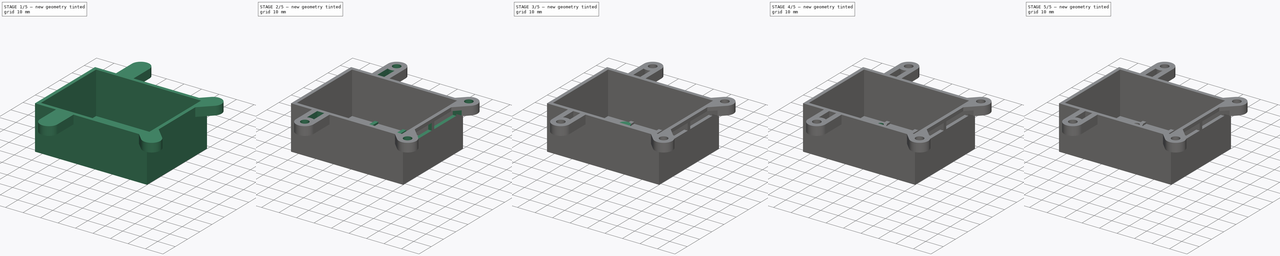
[diagram: build sequence overview — one tinted view per stage of 5, left to right]
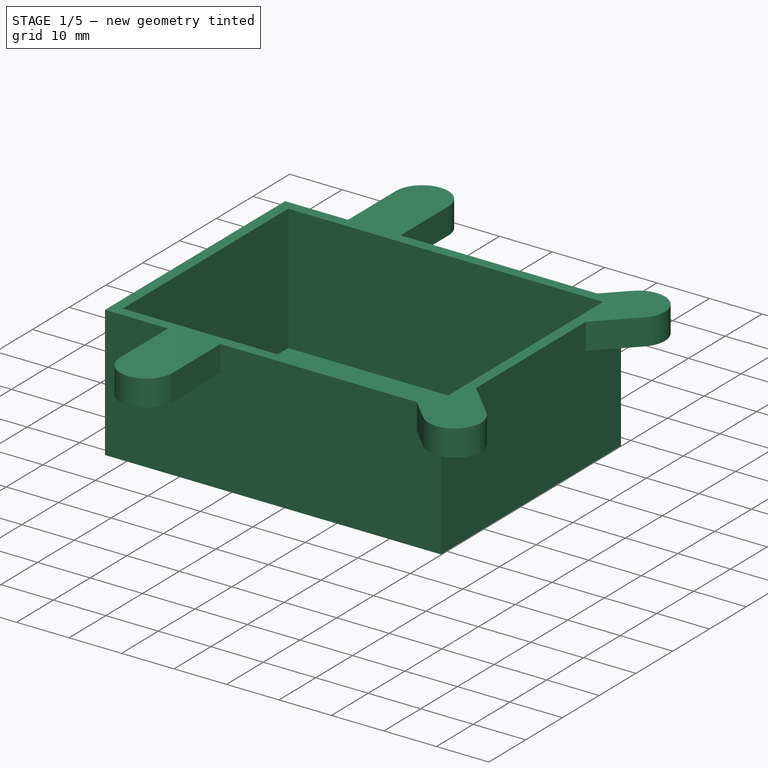
[diagram: stage 1 of 5 — iso view after this stage's code; geometry added in this stage tinted green]
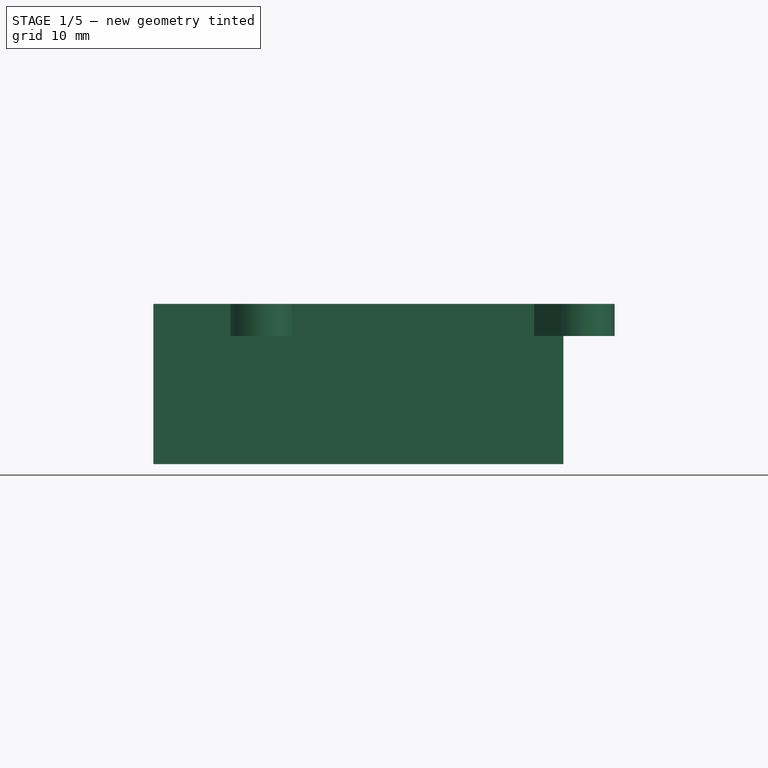
[diagram: stage 1 of 5 — front view after this stage's code; geometry added in this stage tinted green]
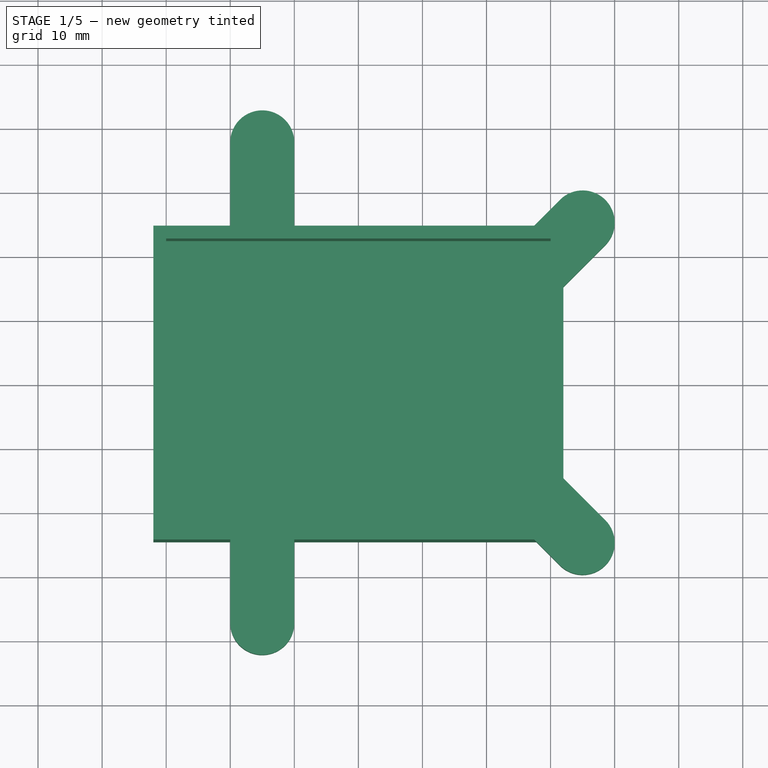
[diagram: stage 1 of 5 — top view after this stage's code; geometry added in this stage tinted green]
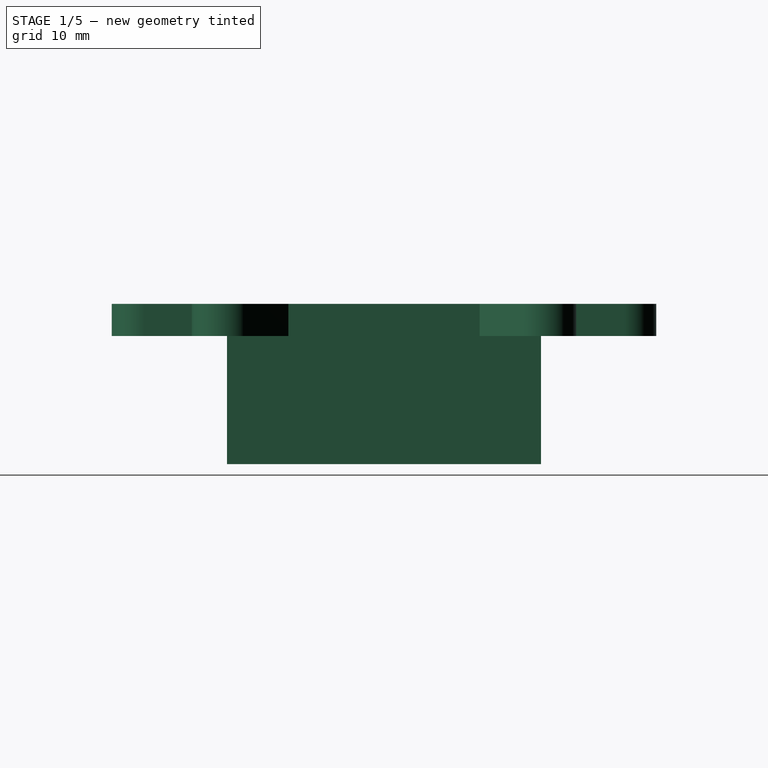
[diagram: stage 1 of 5 — right view after this stage's code; geometry added in this stage tinted green]
FCSTD DOCUMENT  (FreeCAD 1.0R38641 +678 (Git))
Label: box
License: All rights reserved
LicenseURL: https://en.wikipedia.org/wiki/All_rights_reserved
objects: Sketcher::SketchObject×17, PartDesign::Pad×9, PartDesign::Pocket×8, PartDesign::Body×1
note: 86 computed .brp shape members not serialized (recipe doc carries the construction recipe); baked Part::Feature solids carry a one-line shape summary decoded from their .brp

FEATURE [Sketcher::SketchObject] Sketch315
  ArcFitTolerance = 0
  AttachmentSupport = -> [XY_Plane034]
  FullyConstrained = true
  MakeInternals = false
  MapMode = 5
  sketch-geometry (32):
    g0: LineSegment StartX=-30 StartY=22.5 StartZ=0 EndX=30 EndY=22.5 EndZ=0
    g1: LineSegment StartX=-30 StartY=22.5 StartZ=0 EndX=-30 EndY=-22.5 EndZ=0
    g2: LineSegment StartX=-30 StartY=-22.5 StartZ=0 EndX=30 EndY=-22.5 EndZ=0
    g3: LineSegment StartX=30 StartY=22.5 StartZ=0 EndX=30 EndY=-22.5 EndZ=0
    g4: LineSegment StartX=-32 StartY=24.5 StartZ=0 EndX=-20 EndY=24.5 EndZ=0
    g5: LineSegment StartX=27.4289 StartY=-24.5 StartZ=0 EndX=-10 EndY=-24.5 EndZ=0
    g6: LineSegment StartX=-32 StartY=-24.5 StartZ=0 EndX=-32 EndY=24.5 EndZ=0
    g7: GeomPoint [constr] X=35 Y=25 Z=0
    g8: GeomPoint [constr] X=35 Y=-25 Z=0
    g9: GeomPoint [constr] X=-15 Y=-25 Z=0
    g10: GeomPoint [constr] X=-15 Y=25 Z=0
    g11: GeomPoint [constr] X=-15 Y=-37.5 Z=0
    g12: GeomPoint [constr] X=-15 Y=37.5 Z=0
    g13: ArcOfCircle CenterX=35 CenterY=-25 CenterZ=0 NormalX=0 NormalY=0 NormalZ=1 AngleXU=0 Radius=5 StartAngle=3.92699 EndAngle=7.06858
    g14: ArcOfCircle CenterX=35 CenterY=25 CenterZ=0 NormalX=0 NormalY=0 NormalZ=1 AngleXU=0 Radius=5 StartAngle=5.49779 EndAngle=8.63938
    g15: ArcOfCircle CenterX=-15 CenterY=37.5 CenterZ=0 NormalX=0 NormalY=0 NormalZ=1 AngleXU=0 Radius=5 StartAngle=0 EndAngle=3.14159
    g16: ArcOfCircle CenterX=-15 CenterY=-37.5 CenterZ=0 NormalX=0 NormalY=0 NormalZ=1 AngleXU=0 Radius=5 StartAngle=3.14159 EndAngle=6.28319
    g17: LineSegment StartX=27.4289 StartY=24.5 StartZ=0 EndX=31.4645 EndY=28.5355 EndZ=0
    g18: LineSegment StartX=32 StartY=14.9289 StartZ=0 EndX=38.5355 EndY=21.4645 EndZ=0
    g19: LineSegment StartX=-20 StartY=24.5 StartZ=0 EndX=-20 EndY=37.5 EndZ=0
    g20: LineSegment StartX=-10 StartY=24.5 StartZ=0 EndX=-10 EndY=37.5 EndZ=0
    g21: LineSegment StartX=-20 StartY=-24.5 StartZ=0 EndX=-20 EndY=-37.5 EndZ=0
    g22: LineSegment StartX=-10 StartY=-24.5 StartZ=0 EndX=-10 EndY=-37.5 EndZ=0
    g23: LineSegment StartX=27.4289 StartY=-24.5 StartZ=0 EndX=31.4645 EndY=-28.5355 EndZ=0
    g24: LineSegment StartX=32 StartY=-14.9289 StartZ=0 EndX=38.5355 EndY=-21.4645 EndZ=0
    g25: GeomPoint [constr] X=30 Y=20 Z=0
    g26: LineSegment [constr] StartX=30 StartY=20 StartZ=0 EndX=35 EndY=25 EndZ=0
    g27: GeomPoint [constr] X=30 Y=-20 Z=0
    g28: LineSegment [constr] StartX=30 StartY=-20 StartZ=0 EndX=35 EndY=-25 EndZ=0
    g29: LineSegment StartX=-20 StartY=-24.5 StartZ=0 EndX=-32 EndY=-24.5 EndZ=0
    g30: LineSegment StartX=-10 StartY=24.5 StartZ=0 EndX=27.4289 EndY=24.5 EndZ=0
    g31: LineSegment StartX=32 StartY=14.9289 StartZ=0 EndX=32 EndY=-14.9289 EndZ=0
  constraints (78):
    c: Horizontal(g0)
    c: DistanceX(g0,g0) = 60
    c: Coincident(g1,g0)
    c: Vertical(g1)
    c: DistanceY(g1,g1) = 45
    c: Distance(g-1,g0) = 22.5
    c: Distance(g-1,g1) = 30
    c: Coincident(g2,g1)
    c: Horizontal(g2)
    c: Coincident(g3,g0)
    c: Coincident(g3,g2)
    c: Vertical(g3)
    c: Horizontal(g4)
    c: Horizontal(g5)
    c: Coincident(g6,g29)
    c: Coincident(g6,g4)
    c: Vertical(g6)
    c: Distance(g0,g4) = 2
    c: DistanceY(g-1,g8) = -25
    c: DistanceY(g-1,g10) = 25
    c: DistanceY(g-1,g7) = 25
    c: DistanceY(g-1,g9) = -25
    c: Distance(g9,g8) = 50
    c: Distance(g10,g7) = 50
    c: DistanceX(g-2,g9) = -15
    c: DistanceX(g-2,g10) = -15
    c: Distance(g11,g9) = 12.5
    c: DistanceX(g-2,g11) = -15
    c: Distance(g12,g10) = 12.5
    c: DistanceX(g-2,g12) = -15
    c: Coincident(g13,g8)
    c: Coincident(g14,g7)
    c: Coincident(g15,g12)
    c: Coincident(g16,g11)
    c: Diameter(g14) = 10
    c: Equal(g14,g15)
    c: Equal(g15,g16)
    c: Equal(g16,g13)
    c: PointOnObject(g17,g4)
    c: Vertical(g19)
    c: Vertical(g20)
    c: Vertical(g21)
    c: Vertical(g22)
    c: PointOnObject(g25,g3)
    c: Distance(g25,g0) = 2.5
    c: Coincident(g26,g25)
    c: Coincident(g26,g14)
    c: Parallel(g26,g18)
    c: Parallel(g26,g17)
    c: PointOnObject(g27,g3)
    c: Distance(g27,g2) = 2.5
    c: Coincident(g28,g27)
    c: Coincident(g28,g13)
    c: Parallel(g28,g24)
    c: Parallel(g28,g23)
    c: Coincident(g5,g22)
    c: Coincident(g29,g21)
    c: Coincident(g4,g19)
    c: Coincident(g30,g20)
    c: Coincident(g31,g18)
    c: Tangent(g15,g19) = 1.5708
    c: Tangent(g15,g20) = -1.5708
    c: Tangent(g14,g18) = -1.5708
    c: Tangent(g14,g17) = 1.5708
    c: Tangent(g13,g24) = 1.5708
    c: Coincident(g5,g23)
    c: Tangent(g13,g23) = -1.5708
    c: Tangent(g16,g22) = 1.5708
    c: Tangent(g16,g21) = -1.5708
    c: Distance(g18,g3) = 2
    c: Distance(g5,g2) = 2
    c: Distance(g6,g2) = 2
    c: Distance(g6,g1) = 2
    c: Coincident(g31,g24)
    c: Vertical(g31)
    c: Horizontal(g29)
    c: Coincident(g30,g17)
    c: Horizontal(g30)
FEATURE [PartDesign::Pad] Pad148
  Direction = (0,0,1)
  Length = 5
  Length2 = 10
  Profile = -> Sketch315
  ReferenceAxis = -> Sketch315 [N_Axis]
  Suppressed = false
  Type = 0
FEATURE [Sketcher::SketchObject] Sketch316
  ArcFitTolerance = 0
  FullyConstrained = true
  MakeInternals = false
  MapMode = 5
  Placement = pos=(30,0,0) rot=(0.57735,-0.57735,-0.57735;2.0944rad)
  sketch-geometry (8):
    g0: LineSegment StartX=-19 StartY=3 StartZ=0 EndX=-1 EndY=3 EndZ=0
    g1: LineSegment StartX=19 StartY=3 StartZ=0 EndX=19 EndY=-1 EndZ=0
    g2: LineSegment StartX=19 StartY=-1 StartZ=0 EndX=1 EndY=-1 EndZ=0
    g3: LineSegment StartX=-19 StartY=-1 StartZ=0 EndX=-19 EndY=3 EndZ=0
    g4: LineSegment StartX=-1 StartY=3 StartZ=0 EndX=-1 EndY=-1 EndZ=0
    g5: LineSegment StartX=1 StartY=3 StartZ=0 EndX=1 EndY=-1 EndZ=0
    g6: LineSegment StartX=1 StartY=3 StartZ=0 EndX=19 EndY=3 EndZ=0
    g7: LineSegment StartX=-1 StartY=-1 StartZ=0 EndX=-19 EndY=-1 EndZ=0
  constraints (24):
    c: Coincident(g6,g1)
    c: Coincident(g1,g2)
    c: Coincident(g7,g3)
    c: Coincident(g3,g0)
    c: Horizontal(g0)
    c: Horizontal(g2)
    c: Vertical(g1)
    c: Vertical(g3)
    c: DistanceY(g3,g3) = 4
    c: DistanceX(g0,g6) = 38
    c: Distance(g-1,g1) = 19
    c: Vertical(g4)
    c: Vertical(g5)
    c: Coincident(g0,g4)
    c: Coincident(g6,g5)
    c: Coincident(g4,g7)
    c: Coincident(g5,g2)
    c: DistanceY(g5,g5) = 4
    c: DistanceX(g6,g6) = 18
    c: DistanceX(g0,g0) = 18
    c: Horizontal(g7)
    c: Horizontal(g6)
    c: Distance(g-1,g0) = 3
    c: Distance(g-1,g6) = 3
FEATURE [Sketcher::SketchObject] Sketch317
  ArcFitTolerance = 0
  AttachmentSupport = -> [XY_Plane034]
  FullyConstrained = true
  MakeInternals = false
  MapMode = 5
  sketch-geometry (18):
    g0: GeomPoint [constr] X=35 Y=25 Z=0
    g1: GeomPoint [constr] X=35 Y=-25 Z=0
    g2: GeomPoint [constr] X=-15 Y=-25 Z=0
    g3: GeomPoint [constr] X=-15 Y=25 Z=0
    g4: GeomPoint [constr] X=-15 Y=-37.5 Z=0
    g5: GeomPoint [constr] X=-15 Y=37.5 Z=0
    g6: Circle CenterX=35 CenterY=-25 CenterZ=0 NormalX=0 NormalY=0 NormalZ=1 AngleXU=0 Radius=2.25
    g7: Circle CenterX=35 CenterY=25 CenterZ=0 NormalX=0 NormalY=0 NormalZ=1 AngleXU=0 Radius=2.25
    g8: Circle CenterX=-15 CenterY=37.5 CenterZ=0 NormalX=0 NormalY=0 NormalZ=1 AngleXU=0 Radius=2.25
    g9: Circle CenterX=-15 CenterY=-37.5 CenterZ=0 NormalX=0 NormalY=0 NormalZ=1 AngleXU=0 Radius=2.25
    g10: LineSegment StartX=-17 StartY=24.5 StartZ=0 EndX=-13 EndY=24.5 EndZ=0
    g11: LineSegment StartX=-17 StartY=24.5 StartZ=0 EndX=-17 EndY=32.9174 EndZ=0
    g12: LineSegment StartX=-13 StartY=24.5 StartZ=0 EndX=-13 EndY=32.9174 EndZ=0
    g13: LineSegment StartX=-17 StartY=-24.5 StartZ=0 EndX=-13 EndY=-24.5 EndZ=0
    g14: LineSegment StartX=-17 StartY=-24.5 StartZ=0 EndX=-17 EndY=-32.9174 EndZ=0
    g15: LineSegment StartX=-13 StartY=-24.5 StartZ=0 EndX=-13 EndY=-32.9174 EndZ=0
    g16: ArcOfCircle CenterX=-15 CenterY=37.5 CenterZ=0 NormalX=0 NormalY=0 NormalZ=1 AngleXU=0 Radius=5 StartAngle=4.30087 EndAngle=5.12391
    g17: ArcOfCircle CenterX=-15 CenterY=-37.5 CenterZ=0 NormalX=0 NormalY=0 NormalZ=1 AngleXU=0 Radius=5 StartAngle=1.15928 EndAngle=1.98231
  constraints (44):
    c: DistanceY(g-1,g1) = -25
    c: DistanceY(g-1,g3) = 25
    c: DistanceY(g-1,g0) = 25
    c: DistanceY(g-1,g2) = -25
    c: Distance(g2,g1) = 50
    c: Distance(g3,g0) = 50
    c: DistanceX(g-2,g2) = -15
    c: DistanceX(g-2,g3) = -15
    c: Distance(g4,g2) = 12.5
    c: DistanceX(g-2,g4) = -15
    c: Distance(g5,g3) = 12.5
    c: DistanceX(g-2,g5) = -15
    c: Coincident(g6,g1)
    c: Coincident(g7,g0)
    c: Coincident(g8,g5)
    c: Coincident(g9,g4)
    c: Diameter(g7) = 4.5
    c: Equal(g7,g8)
    c: Equal(g8,g6)
    c: Equal(g6,g9)
    c: Horizontal(g10)
    c: Coincident(g11,g10)
    c: Vertical(g11)
    c: Coincident(g12,g10)
    c: Vertical(g12)
    c: Horizontal(g13)
    c: Coincident(g14,g13)
    c: Vertical(g14)
    c: Coincident(g15,g13)
    c: Vertical(g15)
    c: Coincident(g16,g8)
    c: Radius(g16) = 5
    c: Coincident(g12,g16)
    c: Coincident(g11,g16)
    c: Coincident(g17,g9)
    c: Coincident(g15,g17)
    c: Coincident(g14,g17)
    c: Radius(g17) = 5
    c: DistanceX(g10,g10) = 4
    c: Distance(g-1,g10) = 24.5
    c: Distance(g-1,g11) = 17
    c: DistanceX(g13,g13) = 4
    c: Distance(g-1,g13) = 24.5
    c: Distance(g-1,g14) = 17
FEATURE [Sketcher::SketchObject] Sketch318
  ArcFitTolerance = 0
  AttachmentSupport = -> [XY_Plane034]
  FullyConstrained = true
  MakeInternals = false
  MapMode = 5
  sketch-geometry (8):
    g0: LineSegment StartX=-30 StartY=22.5 StartZ=0 EndX=30 EndY=22.5 EndZ=0
    g1: LineSegment StartX=-30 StartY=22.5 StartZ=0 EndX=-30 EndY=-22.5 EndZ=0
    g2: LineSegment StartX=-30 StartY=-22.5 StartZ=0 EndX=30 EndY=-22.5 EndZ=0
    g3: LineSegment StartX=30 StartY=22.5 StartZ=0 EndX=30 EndY=-22.5 EndZ=0
    g4: LineSegment StartX=32 StartY=-24.5 StartZ=0 EndX=-32 EndY=-24.5 EndZ=0
    g5: LineSegment StartX=-32 StartY=-24.5 StartZ=0 EndX=-32 EndY=24.5 EndZ=0
    g6: LineSegment StartX=-32 StartY=24.5 StartZ=0 EndX=32 EndY=24.5 EndZ=0
    g7: LineSegment StartX=32 StartY=24.5 StartZ=0 EndX=32 EndY=-24.5 EndZ=0
  constraints (24):
    c: Horizontal(g0)
    c: DistanceX(g0,g0) = 60
    c: Coincident(g1,g0)
    c: Vertical(g1)
    c: DistanceY(g1,g1) = 45
    c: Distance(g-1,g0) = 22.5
    c: Distance(g-1,g1) = 30
    c: Coincident(g2,g1)
    c: Horizontal(g2)
    c: Coincident(g3,g0)
    c: Coincident(g3,g2)
    c: Vertical(g3)
    c: Horizontal(g4)
    c: Vertical(g5)
    c: Distance(g4,g2) = 2
    c: Distance(g5,g1) = 2
    c: Vertical(g7)
    c: Horizontal(g6)
    c: Coincident(g4,g5)
    c: Coincident(g6,g5)
    c: Coincident(g7,g6)
    c: Distance(g0,g6) = 2
    c: Coincident(g4,g7)
    c: Distance(g0,g7) = 2
FEATURE [PartDesign::Pad] Pad149
  BaseFeature = -> Pad148
  Direction = (0,0,1)
  Length = 20
  Length2 = 10
  Profile = -> Sketch318
  ReferenceAxis = -> Sketch318 [N_Axis]
  Reversed = true
  Suppressed = false
  Type = 0
FEATURE [Sketcher::SketchObject] Sketch319
  ArcFitTolerance = 0
  AttachmentSupport = -> [Pad149]
  FullyConstrained = true
  MakeInternals = false
  MapMode = 5
  Placement = pos=(0,0,-20) rot=(1,0,0;3.14159rad)
  sketch-geometry (4):
    g0: LineSegment StartX=31 StartY=-23.5 StartZ=0 EndX=-31 EndY=-23.5 EndZ=0
    g1: LineSegment StartX=-31 StartY=-23.5 StartZ=0 EndX=-31 EndY=23.5 EndZ=0
    g2: LineSegment StartX=-31 StartY=23.5 StartZ=0 EndX=31 EndY=23.5 EndZ=0
    g3: LineSegment StartX=31 StartY=23.5 StartZ=0 EndX=31 EndY=-23.5 EndZ=0
  constraints (12):
    c: Horizontal(g0)
    c: Vertical(g1)
    c: Vertical(g3)
    c: Horizontal(g2)
    c: Coincident(g0,g1)
    c: Coincident(g2,g1)
    c: Coincident(g3,g2)
    c: Coincident(g0,g3)
    c: DistanceY(g1,g1) = 47
    c: DistanceX(g2,g2) = 62
    c: Distance(g-1,g0) = 23.5
    c: Distance(g-1,g3) = 31
FEATURE [PartDesign::Pad] Pad150
  BaseFeature = -> Pad149
  Direction = (0,0,-1)
  Length = 1
  Length2 = 10
  Profile = -> Sketch319
  ReferenceAxis = -> Sketch319 [N_Axis]
  Reversed = true
  Suppressed = false
  Type = 0
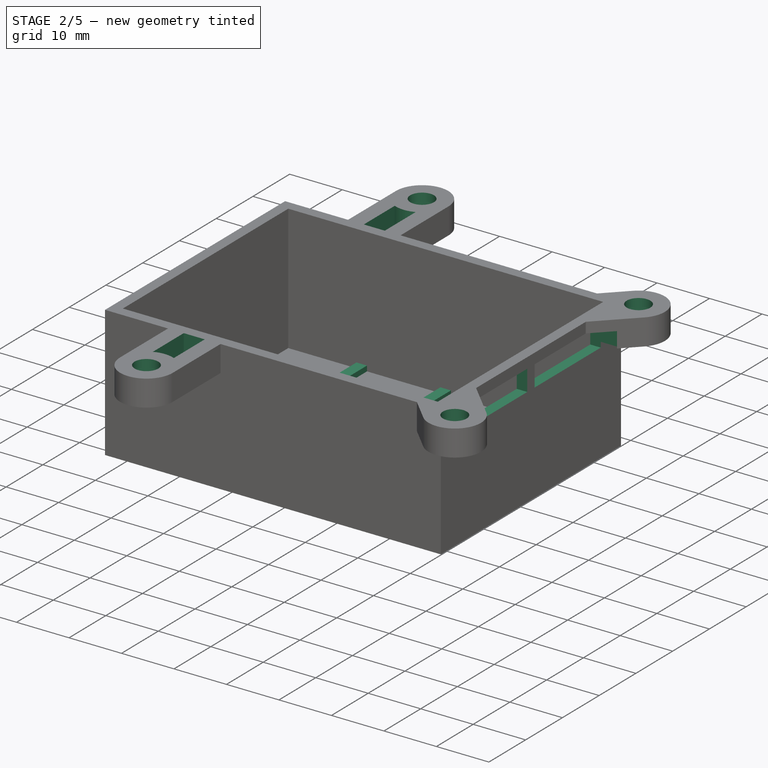
[diagram: stage 2 of 5 — iso view after this stage's code; geometry added in this stage tinted green]
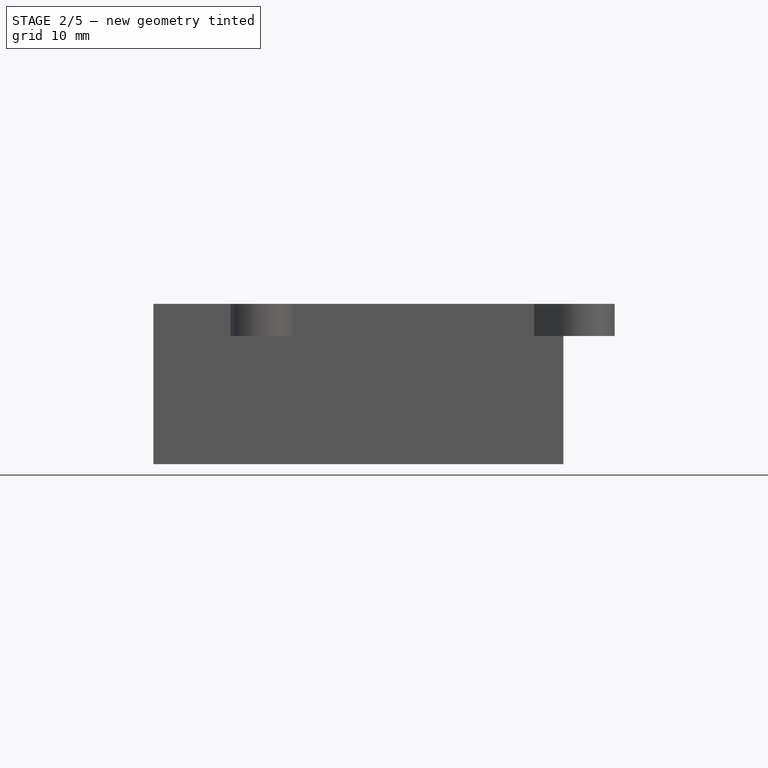
[diagram: stage 2 of 5 — front view after this stage's code; geometry added in this stage tinted green]
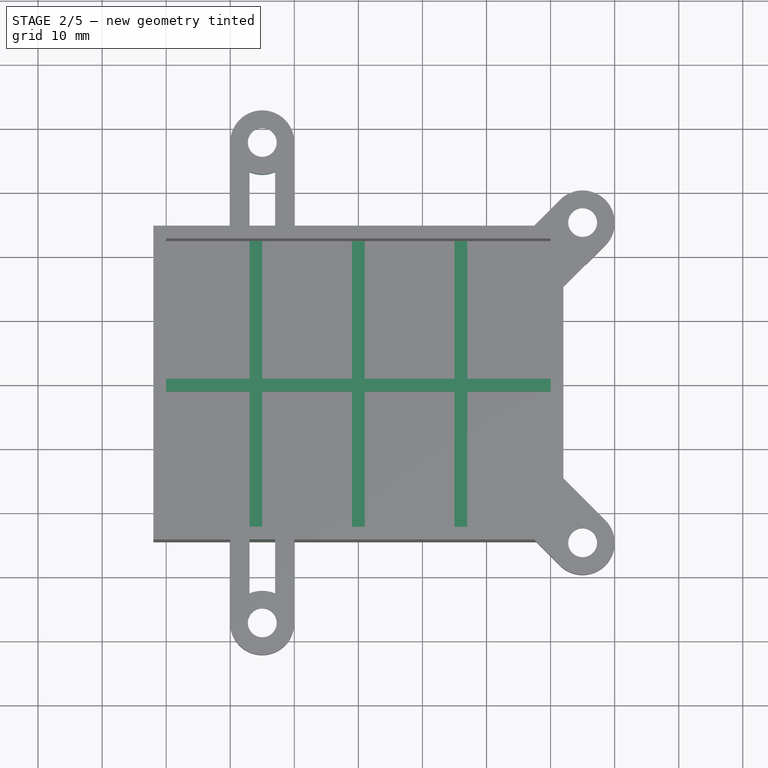
[diagram: stage 2 of 5 — top view after this stage's code; geometry added in this stage tinted green]
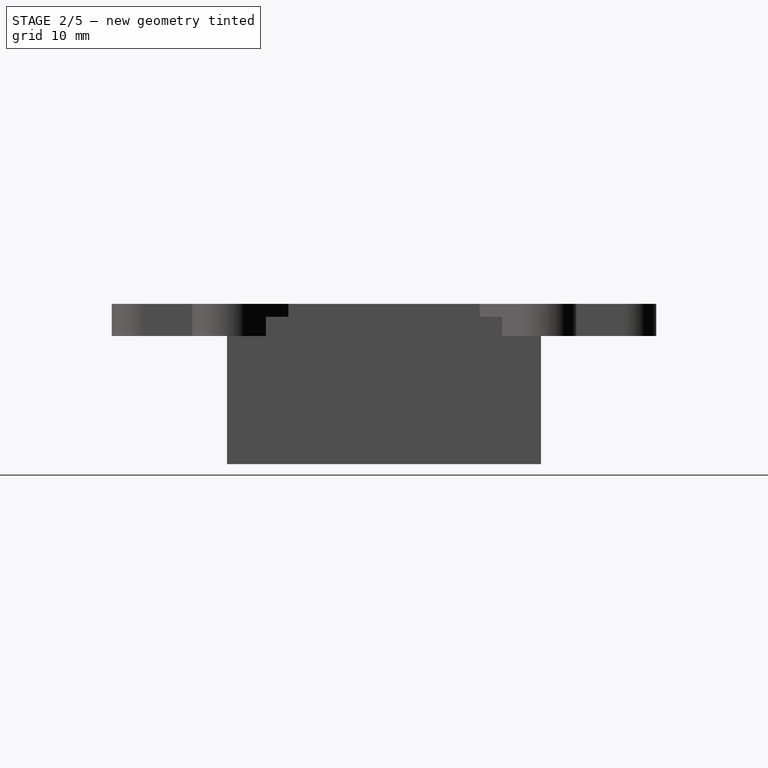
[diagram: stage 2 of 5 — right view after this stage's code; geometry added in this stage tinted green]
FEATURE [Sketcher::SketchObject] Sketch320
  ArcFitTolerance = 0
  AttachmentSupport = -> [Pad150]
  FullyConstrained = true
  MakeInternals = false
  MapMode = 5
  Placement = pos=(0,0,-20) rot=(1,0,0;3.14159rad)
  sketch-geometry (32):
    g0: LineSegment [constr] StartX=-4 StartY=11 StartZ=0 EndX=-4 EndY=-11 EndZ=0
    g1: LineSegment [constr] StartX=-4 StartY=-11 StartZ=0 EndX=-29 EndY=-11 EndZ=0
    g2: LineSegment [constr] StartX=-4 StartY=11 StartZ=0 EndX=-29 EndY=11 EndZ=0
    g3: LineSegment [constr] StartX=-29 StartY=11 StartZ=0 EndX=-29 EndY=-11 EndZ=0
    g4: LineSegment StartX=-31 StartY=1 StartZ=0 EndX=-17 EndY=1 EndZ=0
    g5: LineSegment StartX=31 StartY=1 StartZ=0 EndX=31 EndY=-1 EndZ=0
    g6: LineSegment StartX=15 StartY=-1 StartZ=0 EndX=1 EndY=-1 EndZ=0
    g7: LineSegment StartX=-31 StartY=-1 StartZ=0 EndX=-31 EndY=1 EndZ=0
    g8: LineSegment StartX=-1 StartY=23.5 StartZ=0 EndX=1 EndY=23.5 EndZ=0
    g9: LineSegment StartX=1 StartY=23.5 StartZ=0 EndX=1 EndY=1 EndZ=0
    g10: LineSegment StartX=1 StartY=-23.5 StartZ=0 EndX=-1 EndY=-23.5 EndZ=0
    g11: LineSegment StartX=-1 StartY=-23.5 StartZ=0 EndX=-1 EndY=-1 EndZ=0
    g12: LineSegment StartX=-1 StartY=-1 StartZ=0 EndX=-15 EndY=-1 EndZ=0
    g13: LineSegment StartX=1 StartY=-1 StartZ=0 EndX=1 EndY=-23.5 EndZ=0
    g14: LineSegment StartX=-1 StartY=1 StartZ=0 EndX=-1 EndY=23.5 EndZ=0
    g15: LineSegment StartX=1 StartY=1 StartZ=0 EndX=15 EndY=1 EndZ=0
    g16: LineSegment StartX=-17 StartY=23.5 StartZ=0 EndX=-15 EndY=23.5 EndZ=0
    g17: LineSegment StartX=-15 StartY=23.5 StartZ=0 EndX=-15 EndY=1 EndZ=0
    g18: LineSegment StartX=-15 StartY=-23.5 StartZ=0 EndX=-17 EndY=-23.5 EndZ=0
    g19: LineSegment StartX=-17 StartY=-23.5 StartZ=0 EndX=-17 EndY=-1 EndZ=0
    g20: LineSegment StartX=15 StartY=-23.5 StartZ=0 EndX=17 EndY=-23.5 EndZ=0
    g21: LineSegment StartX=17 StartY=-23.5 StartZ=0 EndX=17 EndY=-1 EndZ=0
    g22: LineSegment StartX=17 StartY=23.5 StartZ=0 EndX=15 EndY=23.5 EndZ=0
    g23: LineSegment StartX=15 StartY=23.5 StartZ=0 EndX=15 EndY=1 EndZ=0
    g24: LineSegment StartX=-15 StartY=1 StartZ=0 EndX=-1 EndY=1 EndZ=0
    g25: LineSegment StartX=-15 StartY=-1 StartZ=0 EndX=-15 EndY=-23.5 EndZ=0
    g26: LineSegment StartX=17 StartY=1 StartZ=0 EndX=17 EndY=23.5 EndZ=0
    g27: LineSegment StartX=15 StartY=-1 StartZ=0 EndX=15 EndY=-23.5 EndZ=0
    g28: LineSegment StartX=-17 StartY=1 StartZ=0 EndX=-17 EndY=23.5 EndZ=0
    g29: LineSegment StartX=17 StartY=1 StartZ=0 EndX=31 EndY=1 EndZ=0
    g30: LineSegment StartX=17 StartY=-1 StartZ=0 EndX=31 EndY=-1 EndZ=0
    g31: LineSegment StartX=-17 StartY=-1 StartZ=0 EndX=-31 EndY=-1 EndZ=0
  constraints (96):
    c: Vertical(g0)
    c: Coincident(g1,g0)
    c: Horizontal(g1)
    c: Coincident(g2,g0)
    c: Horizontal(g2)
    c: Coincident(g3,g2)
    c: Coincident(g3,g1)
    c: Vertical(g3)
    c: Distance(g0) = 22
    c: Distance(g1) = 25
    c: Distance(g-1,g2) = 11
    c: Distance(g-1,g0) = 4
    c: Coincident(g31,g7)
    c: Coincident(g7,g4)
    c: Horizontal(g4)
    c: Horizontal(g6)
    c: Vertical(g5)
    c: Vertical(g7)
    c: Coincident(g8,g9)
    c: Coincident(g13,g10)
    c: Coincident(g10,g11)
    c: Coincident(g14,g8)
    c: Horizontal(g8)
    c: Horizontal(g10)
    c: Vertical(g9)
    c: Vertical(g11)
    c: Coincident(g13,g6)
    c: Coincident(g24,g14)
    c: Coincident(g15,g9)
    c: Coincident(g16,g17)
    c: Coincident(g25,g18)
    c: Coincident(g18,g19)
    c: Coincident(g28,g16)
    c: Horizontal(g16)
    c: Horizontal(g18)
    c: Vertical(g17)
    c: Vertical(g19)
    c: Coincident(g20,g21)
    c: Coincident(g26,g22)
    c: Coincident(g22,g23)
    c: Coincident(g27,g20)
    c: Horizontal(g20)
    c: Horizontal(g22)
    c: Vertical(g21)
    c: Vertical(g23)
    c: DistanceY(g5,g5) = 2
    c: Distance(g-1,g6) = 1
    c: Horizontal(g15)
    c: Distance(g-1,g5) = 31
    c: Distance(g8) = 2
    c: Distance(g-1,g9) = 1
    c: Distance(g7) = 2
    c: Distance(g-1,g12) = 1
    c: Distance(g-1,g7) = 31
    c: Vertical(g14)
    c: Distance(g-1,g8) = 23.5
    c: Horizontal(g12)
    c: Vertical(g13)
    c: Distance(g-1,g10) = 23.5
    c: Coincident(g17,g24)
    c: PointOnObject(g21,g6)
    c: PointOnObject(g26,g15)
    c: Coincident(g6,g27)
    c: Coincident(g15,g23)
    c: Coincident(g28,g4)
    c: Coincident(g29,g26)
    c: Coincident(g29,g5)
    c: Horizontal(g29)
    c: Coincident(g30,g21)
    c: Coincident(g30,g5)
    c: Horizontal(g30)
    c: Distance(g16) = 2
    c: Distance(g22) = 2
    c: Distance(g18) = 2
    c: Distance(g10) = 2
    c: Distance(g20) = 2
    c: Distance(g6,g27) = 14
    c: Vertical(g27)
    c: Distance(g14,g17) = 14
    c: Distance(g9,g23) = 14
    c: Vertical(g26)
    c: DistanceY(g26,g26) = 22.5
    c: Distance(g28) = 22.5
    c: DistanceY(g21,g21) = 22.5
    c: Vertical(g28)
    c: Distance(g19) = 22.5
    c: Vertical(g25)
    c: Horizontal(g24)
    c: Distance(g11,g24) = 2
    c: Coincident(g31,g19)
    c: Horizontal(g31)
    c: Distance(g-1,g4) = 1
    c: Coincident(g25,g12)
    c: Distance(g11,g25) = 14
    c: Coincident(g11,g12)
    c: Distance(g-1,g13) = 1
FEATURE [PartDesign::Pad] Pad151
  BaseFeature = -> Pad150
  Direction = (0,0,-1)
  Length = 2
  Length2 = 10
  Profile = -> Sketch320
  ReferenceAxis = -> Sketch320 [N_Axis]
  Reversed = true
  Suppressed = false
  Type = 0
FEATURE [PartDesign::Pocket] Pocket130
  BaseFeature = -> Pad151
  Direction = (1,-1e-16,1e-16)
  Length = 11
  Length2 = 5
  Midplane = true
  Profile = -> Sketch316
  ReferenceAxis = -> Sketch316 [N_Axis]
  Suppressed = false
  Type = 0
FEATURE [PartDesign::Pocket] Pocket131
  BaseFeature = -> Pocket130
  Direction = (0,0,-1)
  Length = 5
  Length2 = 5
  Profile = -> Sketch317
  ReferenceAxis = -> Sketch317 [N_Axis]
  Reversed = true
  Suppressed = false
  Type = 0
FEATURE [Sketcher::SketchObject] Sketch321
  ArcFitTolerance = 0
  AttachmentSupport = -> [Pad151]
  FullyConstrained = true
  MakeInternals = false
  MapMode = 5
  Placement = pos=(0,0,-20) rot=(1,0,0;3.14159rad)
  sketch-geometry (6):
    g0: LineSegment [constr] StartX=3 StartY=11 StartZ=0 EndX=3 EndY=-11 EndZ=0
    g1: LineSegment [constr] StartX=3 StartY=-11 StartZ=0 EndX=-29 EndY=-11 EndZ=0
    g2: LineSegment [constr] StartX=3 StartY=11 StartZ=0 EndX=-29 EndY=11 EndZ=0
    g3: LineSegment [constr] StartX=-29 StartY=11 StartZ=0 EndX=-29 EndY=-11 EndZ=0
    g4: Circle CenterX=-16 CenterY=16 CenterZ=0 NormalX=0 NormalY=0 NormalZ=1 AngleXU=0 Radius=3
    g5: Circle CenterX=-16 CenterY=-16 CenterZ=0 NormalX=0 NormalY=0 NormalZ=1 AngleXU=0 Radius=3
  constraints (18):
    c: Vertical(g0)
    c: Coincident(g1,g0)
    c: Horizontal(g1)
    c: Coincident(g2,g0)
    c: Horizontal(g2)
    c: Coincident(g3,g2)
    c: Coincident(g3,g1)
    c: Vertical(g3)
    c: Distance(g0) = 22
    c: Distance(g1) = 32
    c: Distance(g-1,g2) = 11
    c: Diameter(g4) = 6
    c: DistanceY(g-1,g4) = 16
    c: DistanceY(g-1,g5) = -16
    c: DistanceX(g-2,g4) = -16
    c: DistanceX(g-2,g5) = -16
    c: Equal(g4,g5)
    c: DistanceX(g-2,g0) = 3
FEATURE [Sketcher::SketchObject] Sketch322
  ArcFitTolerance = 0
  FullyConstrained = true
  MakeInternals = false
  MapMode = 5
  Placement = pos=(0,0,-20) rot=(1,0,0;3.14159rad)
  sketch-geometry (6):
    g0: LineSegment [constr] StartX=-4 StartY=11 StartZ=0 EndX=-4 EndY=-11 EndZ=0
    g1: LineSegment [constr] StartX=-4 StartY=-11 StartZ=0 EndX=-29 EndY=-11 EndZ=0
    g2: LineSegment [constr] StartX=-4 StartY=11 StartZ=0 EndX=-29 EndY=11 EndZ=0
    g3: LineSegment [constr] StartX=-29 StartY=11 StartZ=0 EndX=-29 EndY=-11 EndZ=0
    g4: Circle CenterX=-16 CenterY=16 CenterZ=0 NormalX=0 NormalY=0 NormalZ=1 AngleXU=0 Radius=1.5
    g5: Circle CenterX=-16 CenterY=-16 CenterZ=0 NormalX=0 NormalY=0 NormalZ=1 AngleXU=0 Radius=1.5
  constraints (18):
    c: Vertical(g0)
    c: Coincident(g1,g0)
    c: Horizontal(g1)
    c: Coincident(g2,g0)
    c: Horizontal(g2)
    c: Coincident(g3,g2)
    c: Coincident(g3,g1)
    c: Vertical(g3)
    c: Distance(g0) = 22
    c: Distance(g1) = 25
    c: Distance(g-1,g2) = 11
    c: Distance(g-1,g0) = 4
    c: Diameter(g4) = 3
    c: DistanceY(g-1,g4) = 16
    c: DistanceY(g-1,g5) = -16
    c: DistanceX(g-2,g4) = -16
    c: DistanceX(g-2,g5) = -16
    c: Equal(g5,g4)
FEATURE [Sketcher::SketchObject] Sketch323
  ArcFitTolerance = 0
  AttachmentSupport = -> [XY_Plane034]
  FullyConstrained = true
  MakeInternals = false
  MapMode = 5
  sketch-geometry (10):
    g0: GeomPoint [constr] X=35 Y=25 Z=0
    g1: GeomPoint [constr] X=35 Y=-25 Z=0
    g2: GeomPoint [constr] X=-15 Y=-25 Z=0
    g3: GeomPoint [constr] X=-15 Y=25 Z=0
    g4: GeomPoint [constr] X=-15 Y=-37.5 Z=0
    g5: GeomPoint [constr] X=-15 Y=37.5 Z=0
    g6: Circle CenterX=35 CenterY=-25 CenterZ=0 NormalX=0 NormalY=0 NormalZ=1 AngleXU=0 Radius=3.75
    g7: Circle CenterX=35 CenterY=25 CenterZ=0 NormalX=0 NormalY=0 NormalZ=1 AngleXU=0 Radius=3.75
    g8: Circle CenterX=-15 CenterY=37.5 CenterZ=0 NormalX=0 NormalY=0 NormalZ=1 AngleXU=0 Radius=3.75
    g9: Circle CenterX=-15 CenterY=-37.5 CenterZ=0 NormalX=0 NormalY=0 NormalZ=1 AngleXU=0 Radius=3.75
  constraints (20):
    c: DistanceY(g-1,g1) = -25
    c: DistanceY(g-1,g3) = 25
    c: DistanceY(g-1,g0) = 25
    c: DistanceY(g-1,g2) = -25
    c: Distance(g2,g1) = 50
    c: Distance(g3,g0) = 50
    c: DistanceX(g-2,g2) = -15
    c: DistanceX(g-2,g3) = -15
    c: Distance(g4,g2) = 12.5
    c: DistanceX(g-2,g4) = -15
    c: Distance(g5,g3) = 12.5
    c: DistanceX(g-2,g5) = -15
    c: Coincident(g6,g1)
    c: Coincident(g7,g0)
    c: Coincident(g8,g5)
    c: Coincident(g9,g4)
    c: Diameter(g7) = 7.5
    c: Equal(g7,g8)
    c: Equal(g8,g6)
    c: Equal(g6,g9)
FEATURE [PartDesign::Pocket] Pocket132
  BaseFeature = -> Pocket131
  Direction = (0,0,-1)
  Length = 3.5
  Length2 = 5
  Profile = -> Sketch323
  ReferenceAxis = -> Sketch323 [N_Axis]
  Reversed = true
  Suppressed = false
  Type = 0
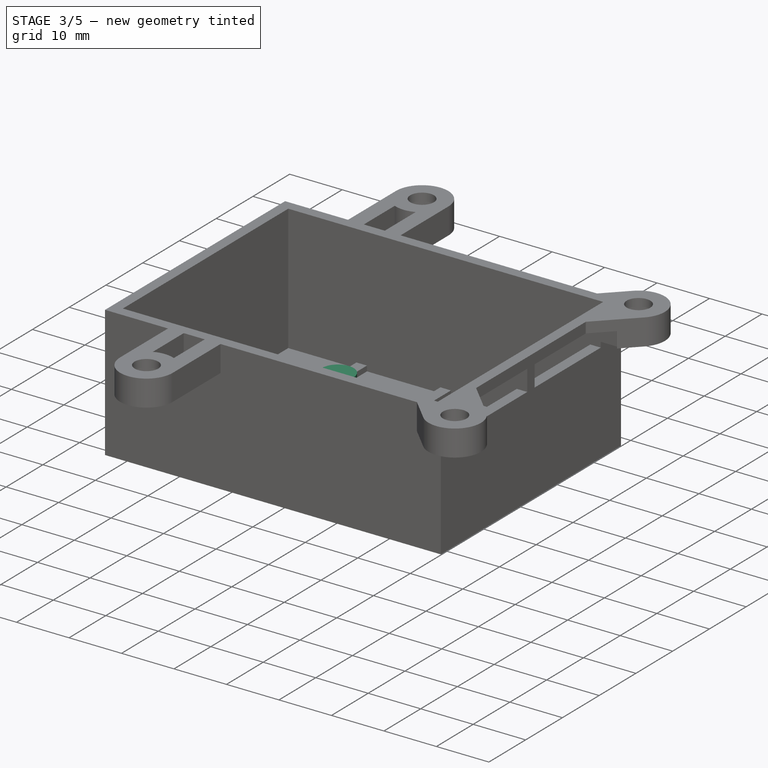
[diagram: stage 3 of 5 — iso view after this stage's code; geometry added in this stage tinted green]
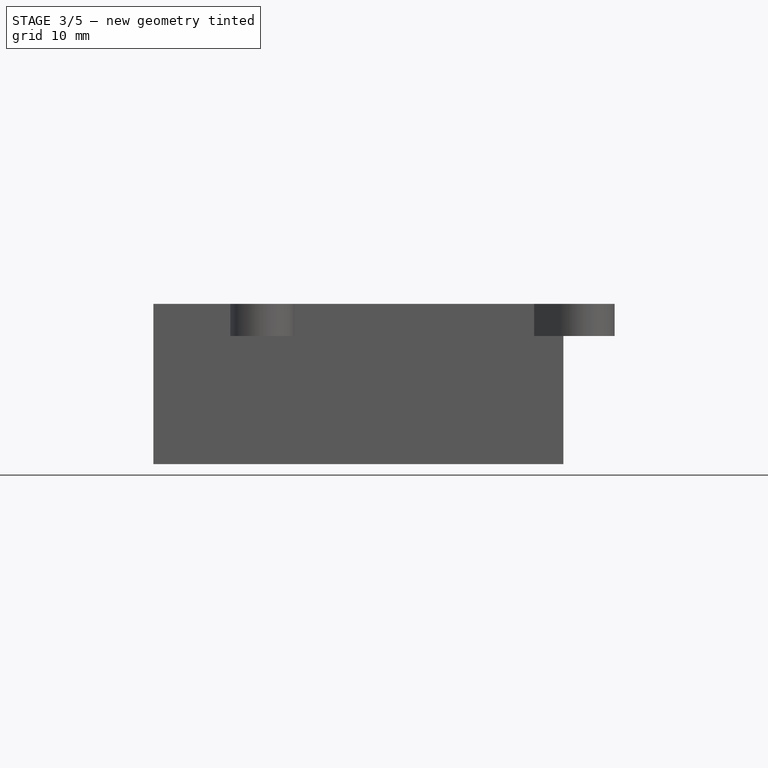
[diagram: stage 3 of 5 — front view after this stage's code; geometry added in this stage tinted green]
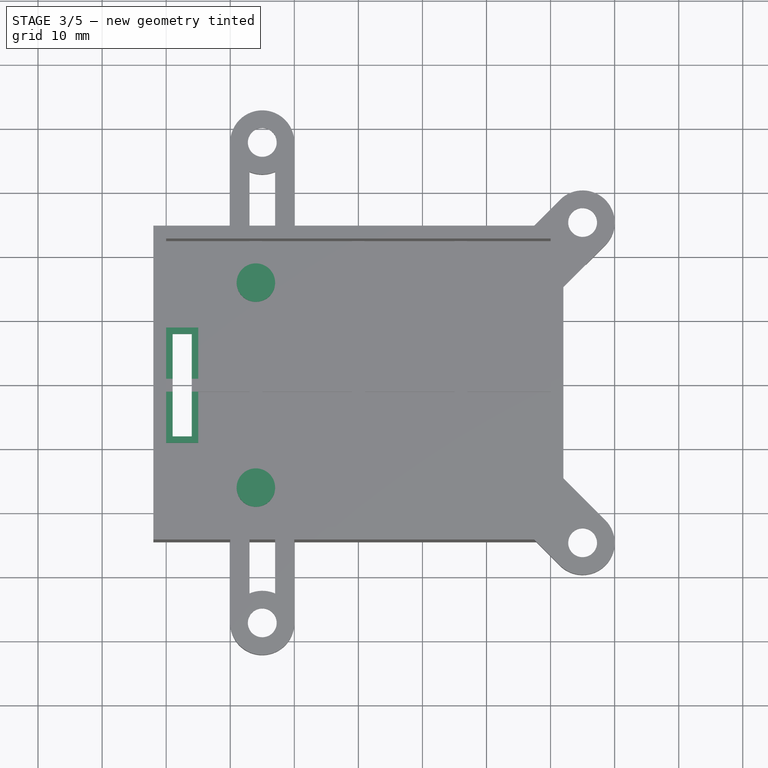
[diagram: stage 3 of 5 — top view after this stage's code; geometry added in this stage tinted green]
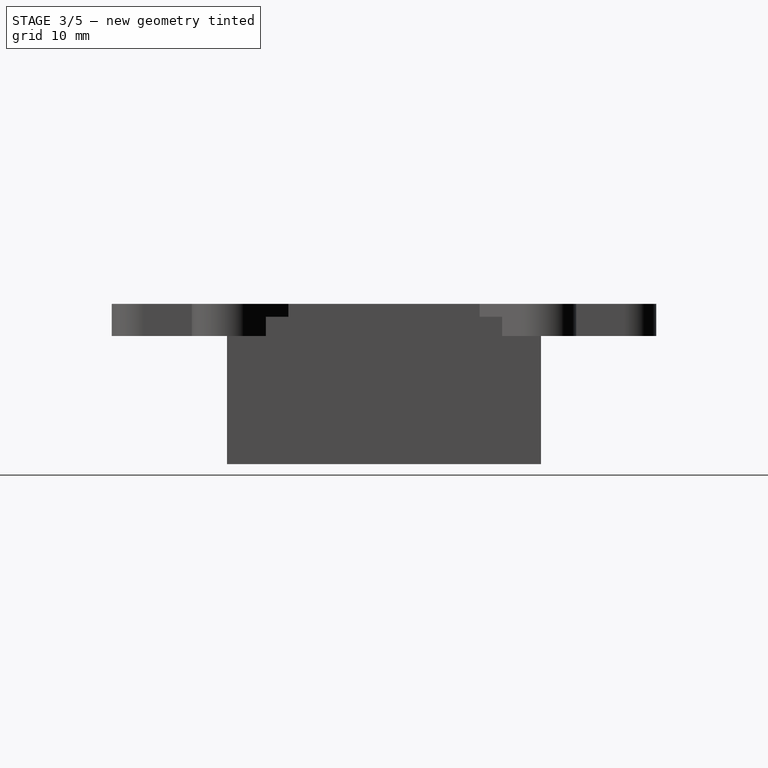
[diagram: stage 3 of 5 — right view after this stage's code; geometry added in this stage tinted green]
FEATURE [Sketcher::SketchObject] Sketch324
  ArcFitTolerance = 0
  AttachmentSupport = -> [Pocket132]
  FullyConstrained = true
  MakeInternals = false
  MapMode = 5
  Placement = pos=(0,0,-20) rot=(1,0,0;3.14159rad)
  sketch-geometry (8):
    g0: LineSegment [constr] StartX=-4 StartY=11 StartZ=0 EndX=-4 EndY=-11 EndZ=0
    g1: LineSegment [constr] StartX=-4 StartY=-11 StartZ=0 EndX=-29 EndY=-11 EndZ=0
    g2: LineSegment [constr] StartX=-4 StartY=11 StartZ=0 EndX=-29 EndY=11 EndZ=0
    g3: LineSegment [constr] StartX=-29 StartY=11 StartZ=0 EndX=-29 EndY=-11 EndZ=0
    g4: LineSegment StartX=-29 StartY=8 StartZ=0 EndX=-26 EndY=8 EndZ=0
    g5: LineSegment StartX=-29 StartY=-8 StartZ=0 EndX=-26 EndY=-8 EndZ=0
    g6: LineSegment StartX=-26 StartY=-8 StartZ=0 EndX=-26 EndY=8 EndZ=0
    g7: LineSegment StartX=-29 StartY=8 StartZ=0 EndX=-29 EndY=-8 EndZ=0
  constraints (24):
    c: Vertical(g0)
    c: Coincident(g1,g0)
    c: Horizontal(g1)
    c: Coincident(g2,g0)
    c: Horizontal(g2)
    c: Coincident(g3,g2)
    c: Coincident(g3,g1)
    c: Vertical(g3)
    c: Distance(g0) = 22
    c: Distance(g1) = 25
    c: Distance(g-1,g2) = 11
    c: Distance(g-1,g0) = 4
    c: PointOnObject(g4,g3)
    c: Horizontal(g4)
    c: PointOnObject(g5,g3)
    c: Horizontal(g5)
    c: Coincident(g6,g5)
    c: Coincident(g6,g4)
    c: Vertical(g6)
    c: Coincident(g7,g4)
    c: Coincident(g7,g5)
    c: Distance(g4) = 3
    c: Distance(g7) = 16
    c: Distance(g-1,g4) = 8
FEATURE [PartDesign::Pocket] Pocket133
  BaseFeature = -> Pocket132
  Direction = (0,0,1)
  Length = 5
  Length2 = 5
  Profile = -> Sketch324
  ReferenceAxis = -> Sketch324 [N_Axis]
  Suppressed = false
  Type = 0
FEATURE [Sketcher::SketchObject] Sketch325
  ArcFitTolerance = 0
  AttachmentSupport = -> [Pocket133]
  FullyConstrained = true
  MakeInternals = false
  MapMode = 5
  Placement = pos=(0,0,-20) rot=(1,0,0;3.14159rad)
  sketch-geometry (12):
    g0: LineSegment [constr] StartX=-4 StartY=11 StartZ=0 EndX=-4 EndY=-11 EndZ=0
    g1: LineSegment [constr] StartX=-4 StartY=-11 StartZ=0 EndX=-29 EndY=-11 EndZ=0
    g2: LineSegment [constr] StartX=-4 StartY=11 StartZ=0 EndX=-29 EndY=11 EndZ=0
    g3: LineSegment [constr] StartX=-29 StartY=11 StartZ=0 EndX=-29 EndY=-11 EndZ=0
    g4: LineSegment StartX=-29 StartY=8 StartZ=0 EndX=-26 EndY=8 EndZ=0
    g5: LineSegment StartX=-29 StartY=-8 StartZ=0 EndX=-26 EndY=-8 EndZ=0
    g6: LineSegment StartX=-26 StartY=-8 StartZ=0 EndX=-26 EndY=8 EndZ=0
    g7: LineSegment StartX=-29 StartY=8 StartZ=0 EndX=-29 EndY=-8 EndZ=0
    g8: LineSegment StartX=-30 StartY=9 StartZ=0 EndX=-25 EndY=9 EndZ=0
    g9: LineSegment StartX=-25 StartY=9 StartZ=0 EndX=-25 EndY=-9 EndZ=0
    g10: LineSegment StartX=-25 StartY=-9 StartZ=0 EndX=-30 EndY=-9 EndZ=0
    g11: LineSegment StartX=-30 StartY=-9 StartZ=0 EndX=-30 EndY=9 EndZ=0
  constraints (36):
    c: Vertical(g0)
    c: Coincident(g1,g0)
    c: Horizontal(g1)
    c: Coincident(g2,g0)
    c: Horizontal(g2)
    c: Coincident(g3,g2)
    c: Coincident(g3,g1)
    c: Vertical(g3)
    c: Distance(g0) = 22
    c: Distance(g1) = 25
    c: Distance(g-1,g2) = 11
    c: Distance(g-1,g0) = 4
    c: PointOnObject(g4,g3)
    c: Horizontal(g4)
    c: PointOnObject(g5,g3)
    c: Horizontal(g5)
    c: Coincident(g6,g5)
    c: Coincident(g6,g4)
    c: Vertical(g6)
    c: Coincident(g7,g4)
    c: Coincident(g7,g5)
    c: Distance(g4) = 3
    c: Distance(g7) = 16
    c: Distance(g-1,g4) = 8
    c: Horizontal(g8)
    c: Coincident(g9,g8)
    c: Vertical(g9)
    c: Coincident(g10,g9)
    c: Horizontal(g10)
    c: Coincident(g11,g10)
    c: Coincident(g11,g8)
    c: Vertical(g11)
    c: DistanceX(g8,g8) = 5
    c: DistanceY(g9,g9) = 18
    c: Distance(g4,g8) = 1
    c: Distance(g4,g9) = 1
FEATURE [PartDesign::Pad] Pad152
  BaseFeature = -> Pocket133
  Direction = (0,0,-1)
  Length = 2
  Length2 = 10
  Profile = -> Sketch325
  ReferenceAxis = -> Sketch325 [N_Axis]
  Reversed = true
  Suppressed = false
  Type = 0
FEATURE [PartDesign::Pad] Pad153
  BaseFeature = -> Pad152
  Direction = (0,0,-1)
  Length = 3
  Length2 = 10
  Profile = -> Sketch321
  ReferenceAxis = -> Sketch321 [N_Axis]
  Reversed = true
  Suppressed = false
  Type = 0
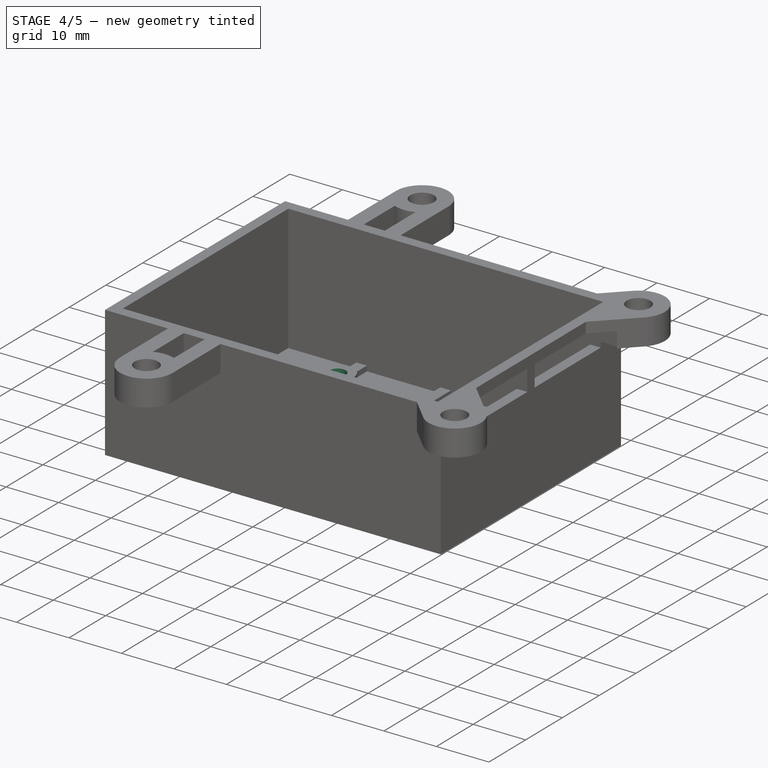
[diagram: stage 4 of 5 — iso view after this stage's code; geometry added in this stage tinted green]
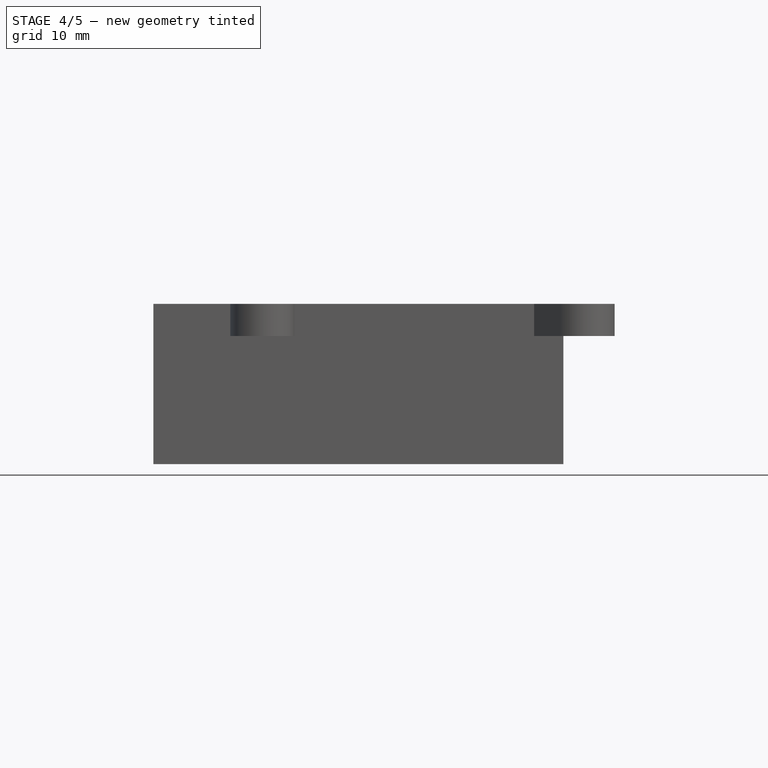
[diagram: stage 4 of 5 — front view after this stage's code; geometry added in this stage tinted green]
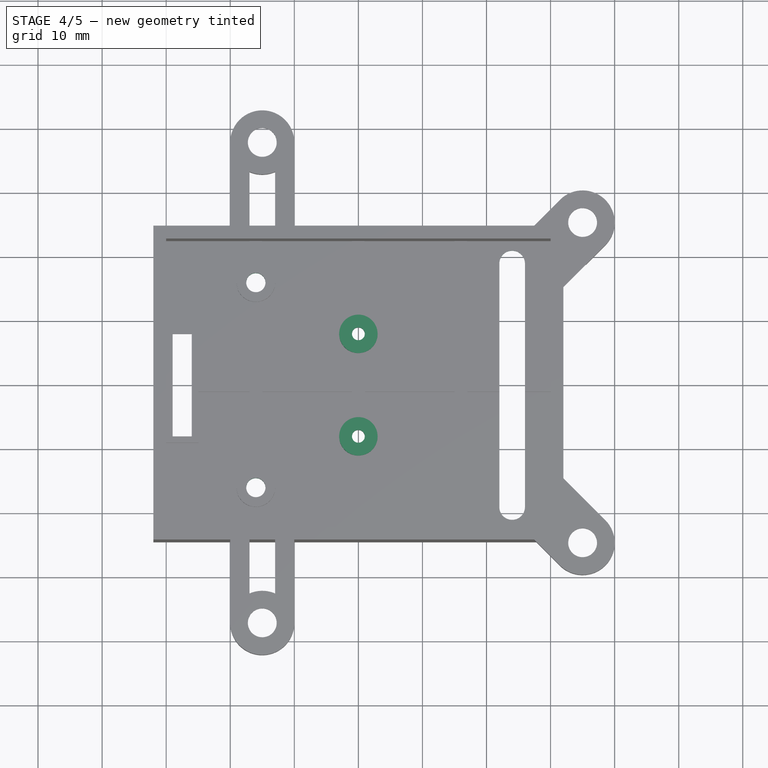
[diagram: stage 4 of 5 — top view after this stage's code; geometry added in this stage tinted green]
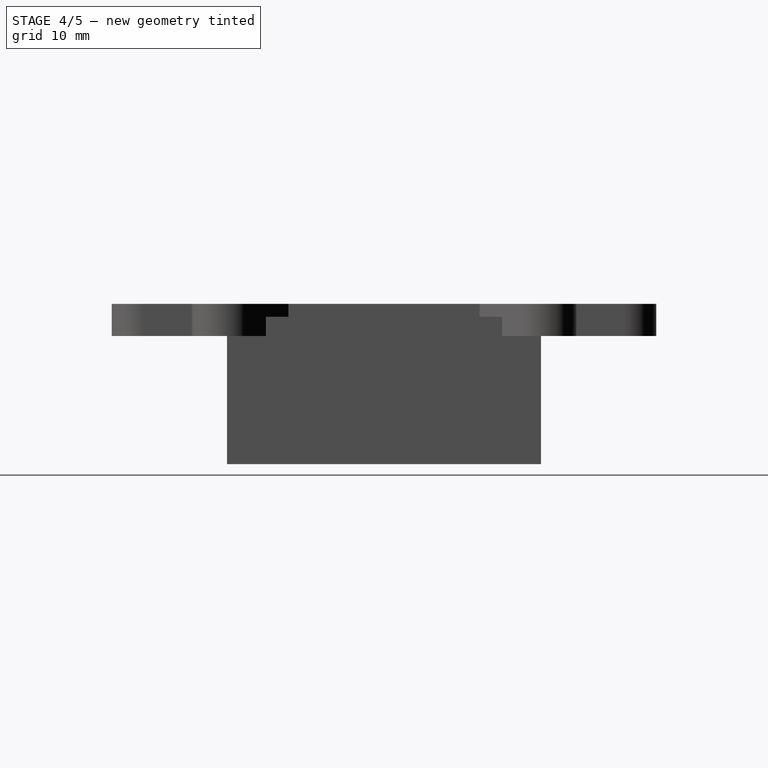
[diagram: stage 4 of 5 — right view after this stage's code; geometry added in this stage tinted green]
FEATURE [PartDesign::Pocket] Pocket134
  BaseFeature = -> Pad153
  Direction = (0,1e-16,1)
  Length = 5
  Length2 = 5
  Profile = -> Sketch322
  ReferenceAxis = -> Sketch322 [N_Axis]
  Suppressed = false
  Type = 0
FEATURE [Sketcher::SketchObject] Sketch326
  ArcFitTolerance = 0
  AttachmentSupport = -> [Pad152]
  FullyConstrained = true
  MakeInternals = false
  MapMode = 5
  Placement = pos=(0,0,-20) rot=(1,0,0;3.14159rad)
  sketch-geometry (6):
    g0: LineSegment [constr] StartX=-4 StartY=11 StartZ=0 EndX=-4 EndY=-11 EndZ=0
    g1: LineSegment [constr] StartX=-4 StartY=-11 StartZ=0 EndX=-29 EndY=-11 EndZ=0
    g2: LineSegment [constr] StartX=-4 StartY=11 StartZ=0 EndX=-29 EndY=11 EndZ=0
    g3: LineSegment [constr] StartX=-29 StartY=11 StartZ=0 EndX=-29 EndY=-11 EndZ=0
    g4: Circle CenterX=0 CenterY=8 CenterZ=0 NormalX=0 NormalY=0 NormalZ=1 AngleXU=0 Radius=3
    g5: Circle CenterX=0 CenterY=-8 CenterZ=0 NormalX=0 NormalY=0 NormalZ=1 AngleXU=0 Radius=3
  constraints (18):
    c: Vertical(g0)
    c: Coincident(g1,g0)
    c: Horizontal(g1)
    c: Coincident(g2,g0)
    c: Horizontal(g2)
    c: Coincident(g3,g2)
    c: Coincident(g3,g1)
    c: Vertical(g3)
    c: Distance(g0) = 22
    c: Distance(g1) = 25
    c: Distance(g-1,g2) = 11
    c: Distance(g-1,g0) = 4
    c: Diameter(g4) = 6
    c: DistanceY(g-1,g5) = -8
    c: DistanceY(g-1,g4) = 8
    c: Equal(g5,g4)
    c: PointOnObject(g5,g-2)
    c: PointOnObject(g4,g-2)
FEATURE [PartDesign::Pad] Pad154
  BaseFeature = -> Pocket134
  Direction = (0,0,-1)
  Length = 3
  Length2 = 10
  Profile = -> Sketch326
  ReferenceAxis = -> Sketch326 [N_Axis]
  Reversed = true
  Suppressed = false
  Type = 0
FEATURE [Sketcher::SketchObject] Sketch327
  ArcFitTolerance = 0
  FullyConstrained = true
  MakeInternals = false
  MapMode = 5
  Placement = pos=(0,0,-20) rot=(1,0,0;3.14159rad)
  sketch-geometry (6):
    g0: LineSegment [constr] StartX=-4 StartY=11 StartZ=0 EndX=-4 EndY=-11 EndZ=0
    g1: LineSegment [constr] StartX=-4 StartY=-11 StartZ=0 EndX=-29 EndY=-11 EndZ=0
    g2: LineSegment [constr] StartX=-4 StartY=11 StartZ=0 EndX=-29 EndY=11 EndZ=0
    g3: LineSegment [constr] StartX=-29 StartY=11 StartZ=0 EndX=-29 EndY=-11 EndZ=0
    g4: Circle CenterX=0 CenterY=8 CenterZ=0 NormalX=0 NormalY=0 NormalZ=1 AngleXU=0 Radius=1
    g5: Circle CenterX=0 CenterY=-8 CenterZ=0 NormalX=0 NormalY=0 NormalZ=1 AngleXU=0 Radius=1
  constraints (18):
    c: Vertical(g0)
    c: Coincident(g1,g0)
    c: Horizontal(g1)
    c: Coincident(g2,g0)
    c: Horizontal(g2)
    c: Coincident(g3,g2)
    c: Coincident(g3,g1)
    c: Vertical(g3)
    c: Distance(g0) = 22
    c: Distance(g1) = 25
    c: Distance(g-1,g2) = 11
    c: Distance(g-1,g0) = 4
    c: Diameter(g4) = 2
    c: DistanceY(g-1,g5) = -8
    c: DistanceY(g-1,g4) = 8
    c: Equal(g4,g5)
    c: PointOnObject(g5,g-2)
    c: PointOnObject(g4,g-2)
FEATURE [PartDesign::Pocket] Pocket135
  BaseFeature = -> Pad154
  Direction = (0,1e-16,1)
  Length = 5
  Length2 = 5
  Profile = -> Sketch327
  ReferenceAxis = -> Sketch327 [N_Axis]
  Suppressed = false
  Type = 0
FEATURE [Sketcher::SketchObject] Sketch328
  ArcFitTolerance = 0
  AttachmentSupport = -> [Pocket135]
  FullyConstrained = true
  MakeInternals = false
  MapMode = 5
  Placement = pos=(0,0,-20) rot=(1,0,0;3.14159rad)
  sketch-geometry (4):
    g0: ArcOfCircle CenterX=24 CenterY=19 CenterZ=0 NormalX=0 NormalY=0 NormalZ=1 AngleXU=0 Radius=2 StartAngle=0 EndAngle=3.14159
    g1: ArcOfCircle CenterX=24 CenterY=-19 CenterZ=0 NormalX=0 NormalY=0 NormalZ=1 AngleXU=0 Radius=2 StartAngle=3.14159 EndAngle=6.28319
    g2: LineSegment StartX=22 StartY=-19 StartZ=0 EndX=22 EndY=19 EndZ=0
    g3: LineSegment StartX=26 StartY=-19 StartZ=0 EndX=26 EndY=19 EndZ=0
  constraints (14):
    c: Coincident(g2,g1)
    c: Coincident(g2,g0)
    c: Vertical(g2)
    c: Coincident(g3,g1)
    c: Coincident(g3,g0)
    c: Vertical(g3)
    c: DistanceY(g3,g3) = 38
    c: DistanceX(g-2,g1) = 24
    c: DistanceY(g-1,g1) = -19
    c: Radius(g1) = 2
    c: Distance(g-1,g2) = 22
    c: DistanceY(g2,g2) = 38
    c: DistanceY(g-1,g0) = 19
    c: Equal(g1,g0)
FEATURE [PartDesign::Pocket] Pocket136
  BaseFeature = -> Pocket135
  Direction = (0,0,1)
  Length = 5
  Length2 = 5
  Profile = -> Sketch328
  ReferenceAxis = -> Sketch328 [N_Axis]
  Suppressed = false
  Type = 0
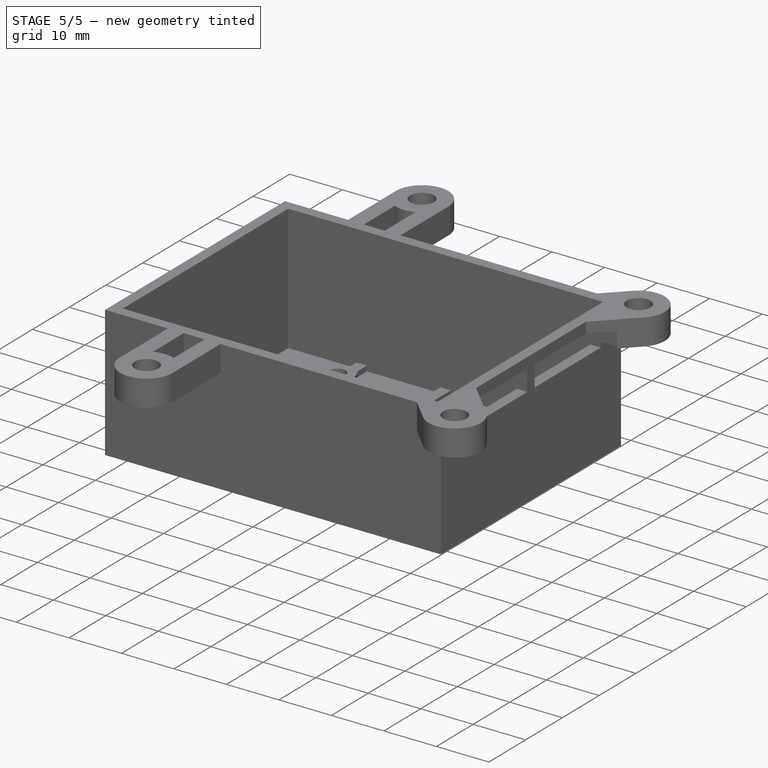
[diagram: stage 5 of 5 — iso view after this stage's code; geometry added in this stage tinted green]
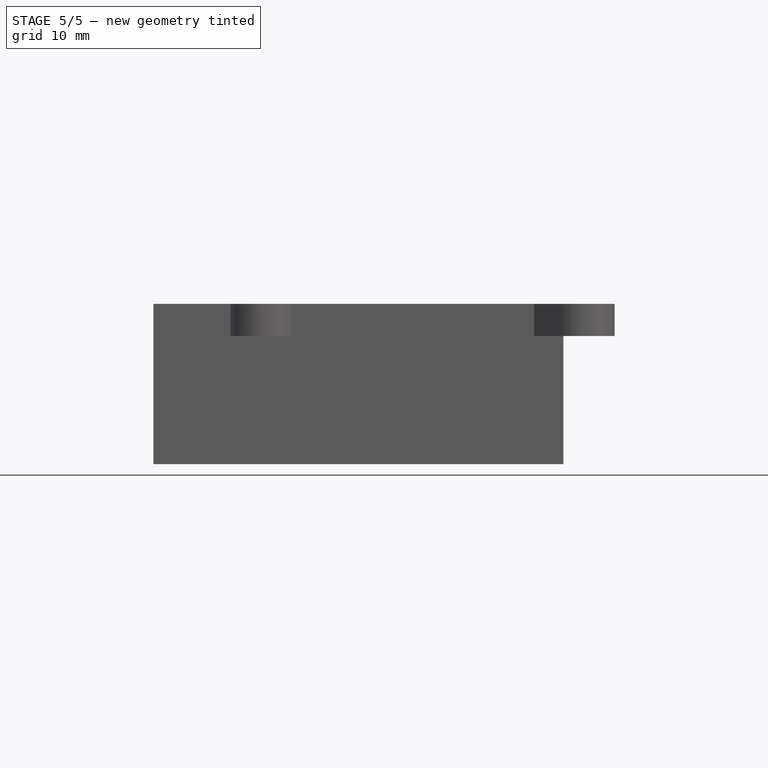
[diagram: stage 5 of 5 — front view after this stage's code; geometry added in this stage tinted green]
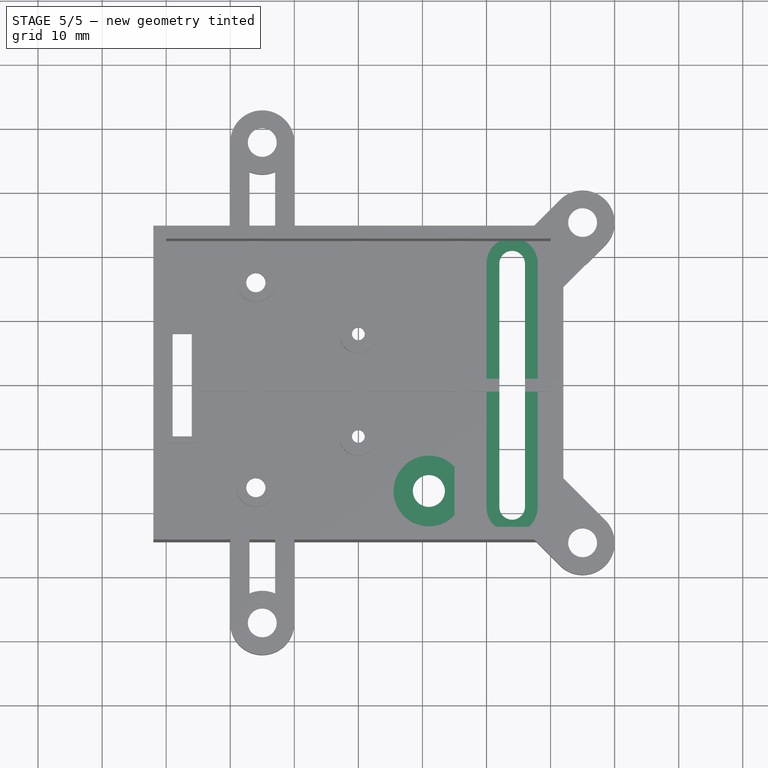
[diagram: stage 5 of 5 — top view after this stage's code; geometry added in this stage tinted green]
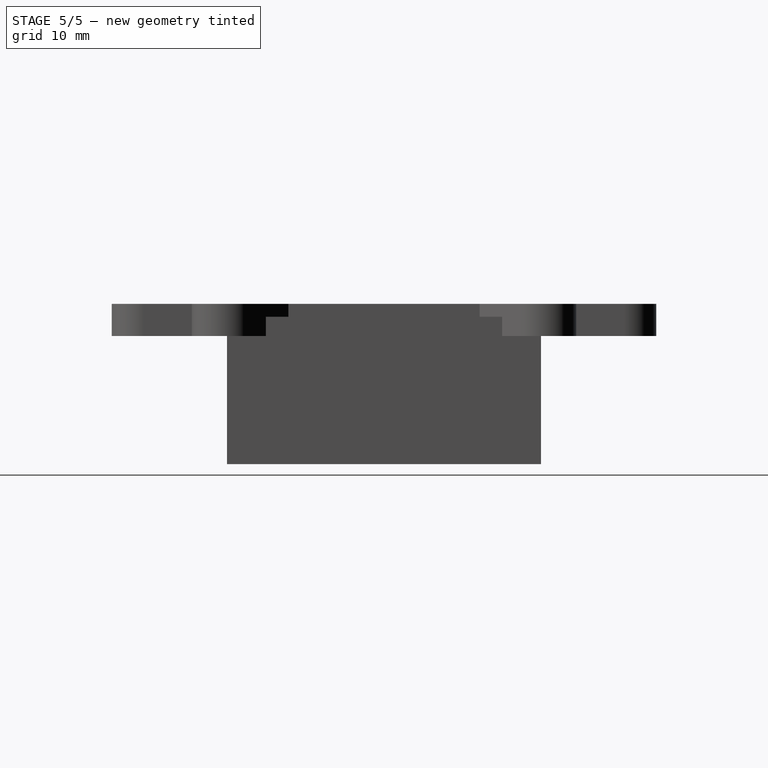
[diagram: stage 5 of 5 — right view after this stage's code; geometry added in this stage tinted green]
FEATURE [Sketcher::SketchObject] Sketch329
  ArcFitTolerance = 0
  AttachmentSupport = -> [Pocket135]
  FullyConstrained = true
  MakeInternals = false
  MapMode = 5
  Placement = pos=(0,0,-20) rot=(1,0,0;3.14159rad)
  sketch-geometry (8):
    g0: ArcOfCircle CenterX=24 CenterY=19 CenterZ=0 NormalX=0 NormalY=0 NormalZ=1 AngleXU=0 Radius=2 StartAngle=1.0916e-12 EndAngle=3.14159
    g1: ArcOfCircle CenterX=24 CenterY=-19 CenterZ=0 NormalX=0 NormalY=0 NormalZ=1 AngleXU=0 Radius=2 StartAngle=3.14159 EndAngle=6.28319
    g2: LineSegment StartX=22 StartY=-19 StartZ=0 EndX=22 EndY=19 EndZ=0
    g3: LineSegment StartX=26 StartY=-19 StartZ=0 EndX=26 EndY=19 EndZ=0
    g4: ArcOfCircle CenterX=24 CenterY=19 CenterZ=0 NormalX=0 NormalY=0 NormalZ=1 AngleXU=0 Radius=4 StartAngle=5.46e-13 EndAngle=3.14159
    g5: ArcOfCircle CenterX=24 CenterY=-19 CenterZ=0 NormalX=0 NormalY=0 NormalZ=1 AngleXU=0 Radius=4 StartAngle=3.14159 EndAngle=6.28319
    g6: LineSegment StartX=20 StartY=19 StartZ=0 EndX=20 EndY=-19 EndZ=0
    g7: LineSegment StartX=28 StartY=-19 StartZ=0 EndX=28 EndY=19 EndZ=0
  constraints (26):
    c: Coincident(g2,g1)
    c: Coincident(g2,g0)
    c: Vertical(g2)
    c: Coincident(g3,g1)
    c: Coincident(g3,g0)
    c: Vertical(g3)
    c: DistanceY(g3,g3) = 38
    c: DistanceX(g-2,g1) = 24
    c: DistanceY(g-1,g1) = -19
    c: Radius(g1) = 2
    c: Distance(g-1,g2) = 22
    c: DistanceY(g2,g2) = 38
    c: DistanceY(g-1,g0) = 19
    c: Equal(g1,g0)
    c: Coincident(g4,g0)
    c: Coincident(g5,g1)
    c: Coincident(g6,g4)
    c: Coincident(g6,g5)
    c: Vertical(g6)
    c: Coincident(g7,g5)
    c: Coincident(g7,g4)
    c: Vertical(g7)
    c: Radius(g4) = 4
    c: DistanceY(g-1,g4) = 19
    c: DistanceY(g-1,g4) = 19
    c: DistanceY(g-1,g5) = -19
FEATURE [PartDesign::Pad] Pad155
  BaseFeature = -> Pocket136
  Direction = (0,0,-1)
  Length = 2
  Length2 = 10
  Profile = -> Sketch329
  ReferenceAxis = -> Sketch329 [N_Axis]
  Reversed = true
  Suppressed = false
  Type = 0
FEATURE [Sketcher::SketchObject] Sketch330
  ArcFitTolerance = 0
  AttachmentSupport = -> [Pad155]
  FullyConstrained = true
  MakeInternals = false
  MapMode = 5
  Placement = pos=(0,0,-20) rot=(1,0,0;3.14159rad)
  sketch-geometry (1):
    g0: Circle CenterX=11 CenterY=16.5 CenterZ=0 NormalX=0 NormalY=0 NormalZ=1 AngleXU=0 Radius=2.5
  constraints (3):
    c: DistanceY(g-1,g0) = 16.5
    c: DistanceX(g-2,g0) = 11
    c: Diameter(g0) = 5
FEATURE [PartDesign::Pocket] Pocket137
  BaseFeature = -> Pad155
  Direction = (0,0,1)
  Length = 5
  Length2 = 5
  Profile = -> Sketch330
  ReferenceAxis = -> Sketch330 [N_Axis]
  Suppressed = false
  Type = 0
FEATURE [Sketcher::SketchObject] Sketch331
  ArcFitTolerance = 0
  AttachmentSupport = -> [Pocket137]
  FullyConstrained = true
  MakeInternals = false
  MapMode = 5
  Placement = pos=(0,0,-20) rot=(1,0,0;3.14159rad)
  sketch-geometry (2):
    g0: Circle CenterX=11 CenterY=16.5 CenterZ=0 NormalX=0 NormalY=0 NormalZ=1 AngleXU=0 Radius=2.5
    g1: Circle CenterX=11 CenterY=16.5 CenterZ=0 NormalX=0 NormalY=0 NormalZ=1 AngleXU=0 Radius=5.5
  constraints (5):
    c: DistanceY(g-1,g0) = 16.5
    c: DistanceX(g-2,g0) = 11
    c: Diameter(g0) = 5
    c: Coincident(g1,g0)
    c: Diameter(g1) = 11
FEATURE [PartDesign::Pad] Pad156
  BaseFeature = -> Pocket137
  Direction = (0,0,-1)
  Length = 2
  Length2 = 10
  Profile = -> Sketch331
  ReferenceAxis = -> Sketch331 [N_Axis]
  Reversed = true
  Suppressed = false
  Type = 0
FEATURE [PartDesign::Body] Body033  label="box"
  AllowCompound = false
  Group = -> [Sketch315,Pad148,Sketch318,Pad149,Sketch319,Pad150,Sketch320,Pad151,Sketch316,Pocket130,Sketch317,Pocket131,Sketch323,Pocket132,Sketch324,Pocket133,Sketch325,Pad152,Sketch321,Pad153,Sketch322,Pocket134,Sketch326,Pad154,Sketch327,Pocket135,Sketch328,Pocket136,Sketch329,Pad155,Sketch330,Pocket137,Sketch331,Pad156]
  Origin = -> Origin033
  Placement = pos=(-216,0,0) rot=(0,0,1;0rad)
  Tip = -> Pad156
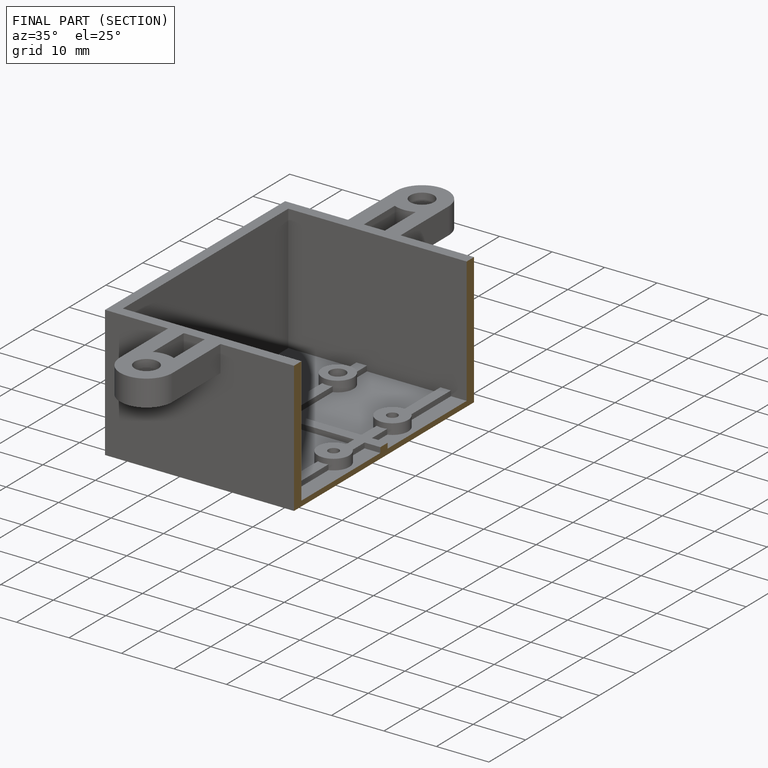
[diagram: finished part — half-section view (interior)]
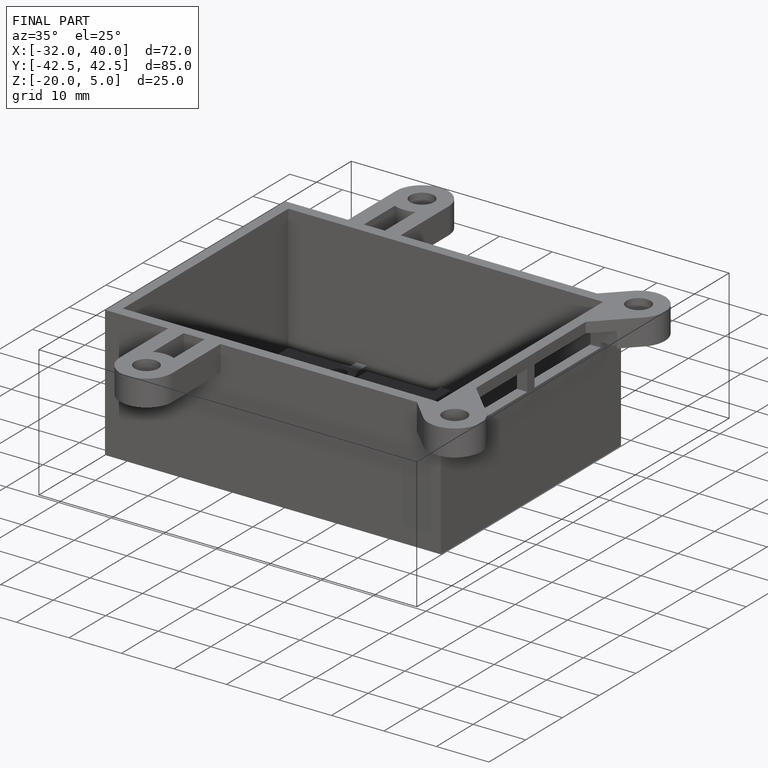
[diagram: finished part — iso view with bounding-box wireframe]
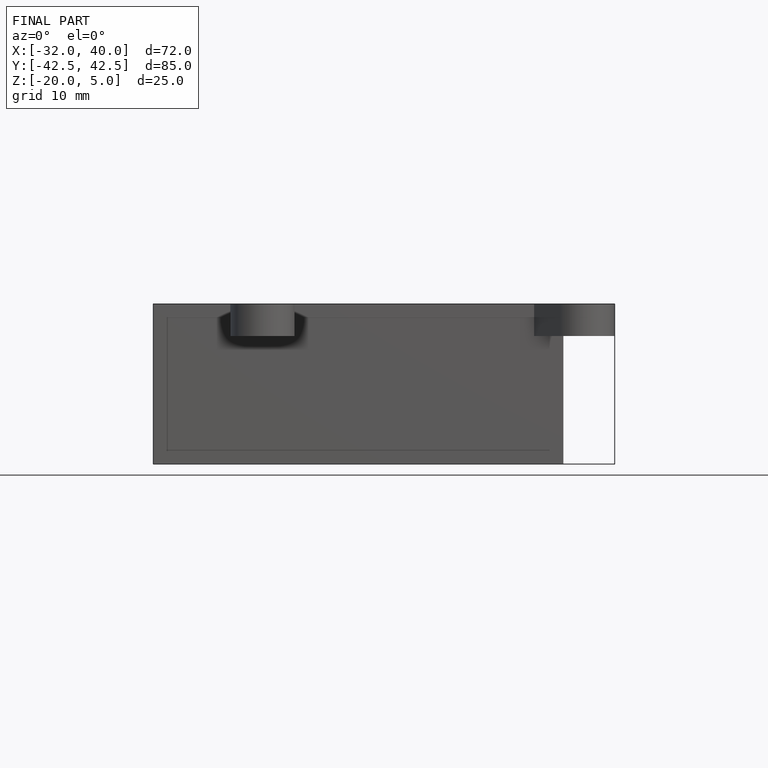
[diagram: finished part — front view with bounding-box wireframe]
